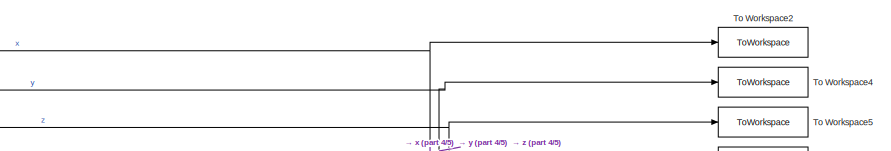
[diagram: root canvas - part 1/5, top right region]
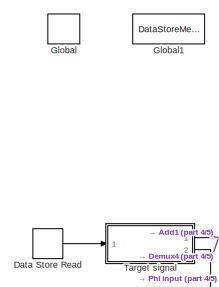
[diagram: root canvas - part 2/5, top left region]
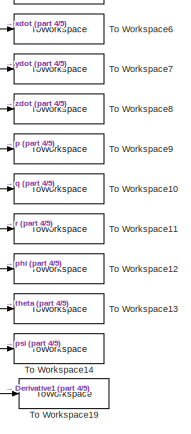
[diagram: root canvas - part 3/5, top right region]
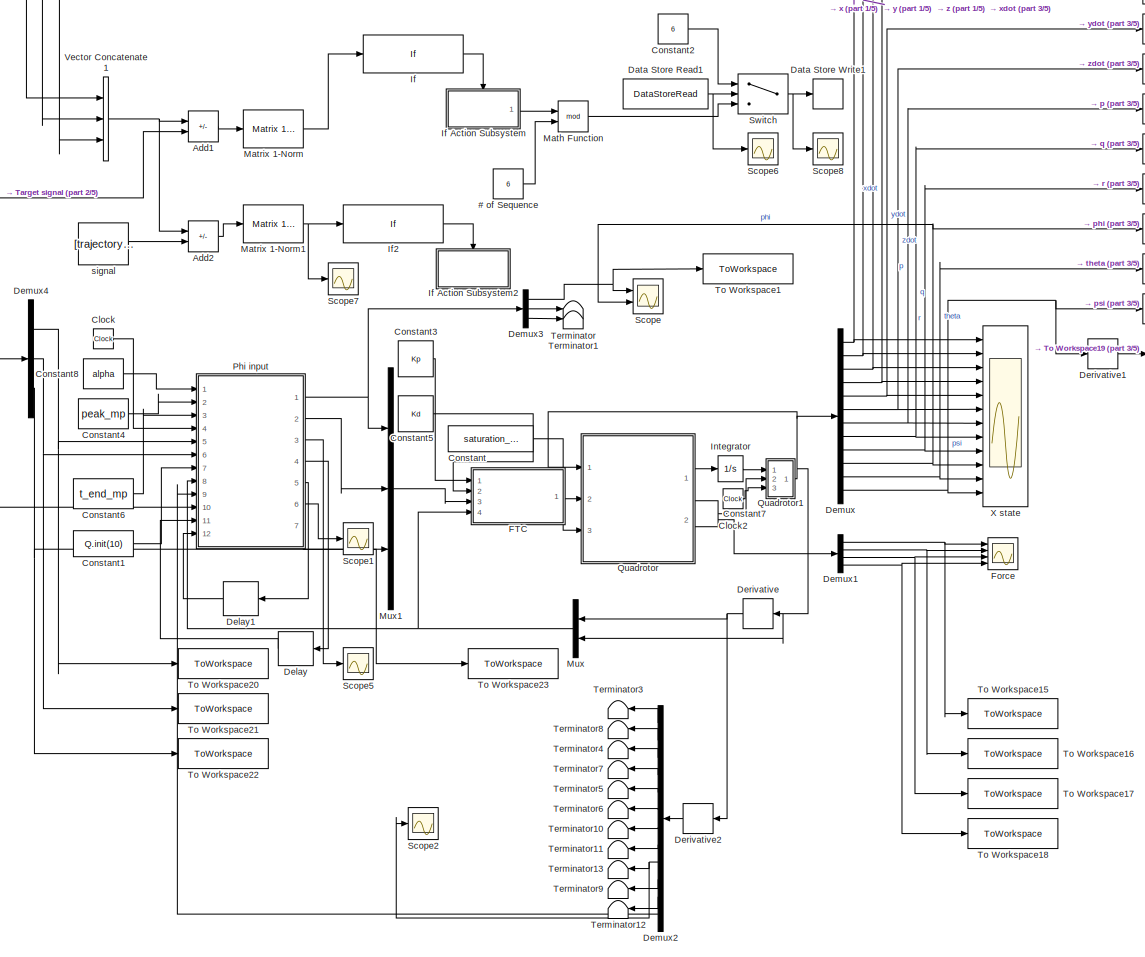
[diagram: root canvas - part 4/5, most of the canvas]
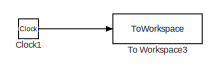
[diagram: root canvas - part 5/5, bottom center region]
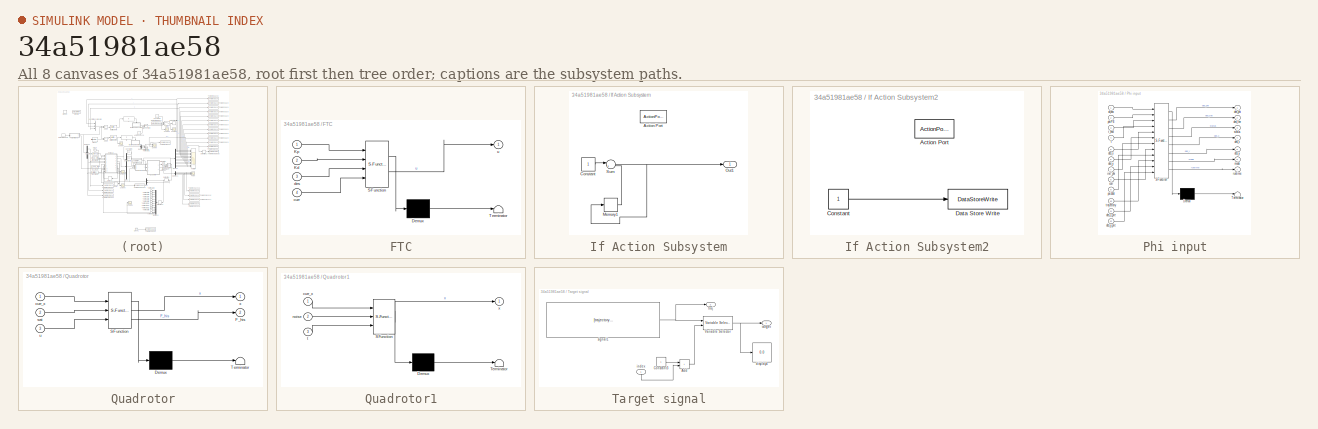
[diagram: thumbnail index - all 8 canvases of the model, root first then tree order]
MODEL slx_34a51981ae58
KIND model
CONFIG AbsTol = auto
CONFIG EnableMultiTasking = off
CONFIG FixedStep = 0.005
CONFIG MaxStep = auto
CONFIG MinStep = auto
CONFIG RelTol = 1e-3
CONFIG SampleTimeConstraint = Unconstrained
CONFIG SolverName = ode4
CONFIG StartTime = 0.0
CONFIG StopTime = tsim*1.64
BLOCK [Constant] # of Sequence 
  Value = 6
BLOCK [Sum] Add1
  IconShape = rectangular
  Inputs = -+
  Ports = [2, 1]
BLOCK [Sum] Add2
  IconShape = rectangular
  Inputs = -+
  Ports = [2, 1]
BLOCK [Clock] Clock
BLOCK [Clock] Clock1
BLOCK [Clock] Clock2
BLOCK [Constant] Constant
  Value = saturation_on
BLOCK [Constant] Constant1
  Value = Q.init(10)
BLOCK [Constant] Constant2
  Value = 6
BLOCK [Constant] Constant3
  Value = Kp
BLOCK [Constant] Constant4
  Value = peak_mp
BLOCK [Constant] Constant5
  Value = Kd
BLOCK [Constant] Constant6
  Value = t_end_mp
BLOCK [Constant] Constant7
  Value = noise
BLOCK [Constant] Constant8
  Value = alpha
BLOCK [DataStoreRead] Data Store Read
  DataStoreName = Index
  IndexOptions = Index vector (dialog)
  Indices = 1
  OutputSizes = 1
  Ports = [0, 1]
BLOCK [DataStoreRead] Data Store Read1
  DataStoreName = FinalPoint
  IndexOptions = Index vector (dialog)
  Indices = 1
  OutputSizes = 1
  Ports = [0, 1]
BLOCK [DataStoreWrite] Data Store Write1
  DataStoreName = Index
  IndexOptions = Index vector (dialog)
  Indices = 1
  OutputSizes = 1
  Ports = [1]
BLOCK [Delay] Delay
  DelayLength = 1
  InputPortMap = u0
  Ports = [1, 1]
BLOCK [Delay] Delay1
  DelayLength = 1
  InputPortMap = u0
  Ports = [1, 1]
BLOCK [Demux] Demux
  NameLocation = left
  Outputs = 12
  Ports = [1, 12]
BLOCK [Demux] Demux1
  Ports = [1, 4]
BLOCK [Demux] Demux2
  Outputs = 12
  Ports = [1, 12]
BLOCK [Demux] Demux3
  Outputs = 3
  Ports = [1, 3]
BLOCK [Demux] Demux4
  Outputs = 3
  Ports = [1, 3]
BLOCK [Derivative] Derivative
BLOCK [Derivative] Derivative1
BLOCK [Derivative] Derivative2
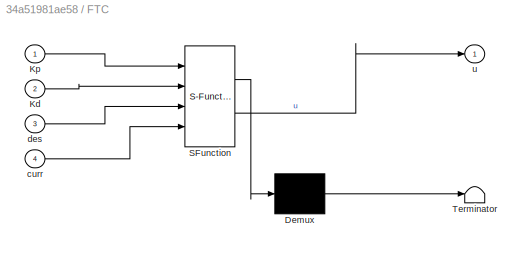
BLOCK [SubSystem] FTC
  ErrorFcn = Stateflow.Translate.translate
  PermitHierarchicalResolution = ExplicitOnly
  Ports = [4, 1]
  RequestExecContextInheritance = off
  SFBlockType = MATLAB Function
  TreatAsAtomicUnit = on
BLOCK [Demux] FTC/ Demux 
  Outputs = 1
  Ports = [1, 1]
BLOCK [S-Function] FTC/ SFunction 
  EnableBusSupport = on
  FunctionName = sf_sfun
  PortCounts = [4 2]
  Ports = [4, 2]
  SFcnIsStateOwnerBlock = off
  SFunctionDeploymentMode = off
  Tag = Stateflow S-Function 5
BLOCK [Terminator] FTC/ Terminator 
BLOCK [Inport] FTC/Kd
  Port = 2
BLOCK [Inport] FTC/Kp
BLOCK [Inport] FTC/curr
  Port = 4
BLOCK [Inport] FTC/des
  Port = 3
BLOCK [Outport] FTC/u
BLOCK [Scope] Force
  Floating = off
  NumInputPorts = 4
  Ports = [4]
  ScopeSpecificationString = Simulink.scopes.TimeScopeBlockCfg('CurrentConfiguration', extmgr.ConfigurationSet(extmgr.Configuration('Core','General UI',true),extmgr.Configuration('Core','Source UI',true),extmgr.Configuration('Sources','WiredSimulink',true,'DataLoggingVariableName','Force','DataLogging',true,'DataLoggingSaveFormat','Structure'),extmgr.Configuration('Visuals','Time Domain',true,'SerializedDisplays',{struct('Min...<+3473ch>
BLOCK [DataStoreMemory] Global
  DataStoreName = Index
  OutDataTypeStr = double
  ReadBeforeWriteMsg = warning
  ShowAdditionalParam = off
  SignalType = real
  WriteAfterReadMsg = warning
  WriteAfterWriteMsg = warning
BLOCK [DataStoreMemory] Global1
  DataStoreName = FinalPoint
  OutDataTypeStr = double
  ReadBeforeWriteMsg = warning
  ShowAdditionalParam = off
  SignalType = real
  WriteAfterReadMsg = warning
  WriteAfterWriteMsg = warning
BLOCK [If] If
  IfExpression = u1 <1.5
  Ports = [1, 1]
  ShowElse = off
BLOCK [SubSystem] If Action Subsystem
  Ports = [0, 1, 0, 0, 0, 0, 0, 1]
  RequestExecContextInheritance = off
  TreatAsAtomicUnit = on
BLOCK [ActionPort] If Action Subsystem/Action Port
  ActionPortLabel = if(u1 <1)
BLOCK [Constant] If Action Subsystem/Constant
BLOCK [Memory] If Action Subsystem/Memory1
BLOCK [Outport] If Action Subsystem/Out1
  VectorParamsAs1DForOutWhenUnconnected = off
BLOCK [Sum] If Action Subsystem/Sum
  Inputs = |++
  Ports = [2, 1]
BLOCK [SubSystem] If Action Subsystem2
  Ports = [0, 0, 0, 0, 0, 0, 0, 1]
  RequestExecContextInheritance = off
  TreatAsAtomicUnit = on
BLOCK [ActionPort] If Action Subsystem2/Action Port
  ActionPortLabel = if(u1 < 1)
BLOCK [Constant] If Action Subsystem2/Constant
BLOCK [DataStoreWrite] If Action Subsystem2/Data Store Write
  DataStoreName = FinalPoint
  IndexOptions = Index vector (dialog)
  Indices = 1
  OutputSizes = 1
  Ports = [1]
BLOCK [If] If2
  IfExpression = u1 < 1.5
  Ports = [1, 1]
  ShowElse = off
BLOCK [Integrator] Integrator
  InitialCondition = Q.init
  Ports = [1, 1]
BLOCK [Math] Math Function
  Operator = mod
  Ports = [2, 1]
  SignedPower = on
BLOCK [Reference] Matrix 1-Norm  REF=dspmtrx3/Matrix 
1-Norm
  Ports = [1, 1]
  SourceBlock = dspmtrx3/Matrix \n1-Norm
  SourceProductBaseCode = DS
  SourceType = Matrix 1-Norm
BLOCK [Reference] Matrix 1-Norm1  REF=dspmtrx3/Matrix 
1-Norm
  Ports = [1, 1]
  SourceBlock = dspmtrx3/Matrix \n1-Norm
  SourceProductBaseCode = DS
  SourceType = Matrix 1-Norm
BLOCK [Mux] Mux
  DisplayOption = bar
  Inputs = 2
  Ports = [2, 1]
BLOCK [Mux] Mux1
  DisplayOption = bar
  Inputs = 3
  Ports = [3, 1]
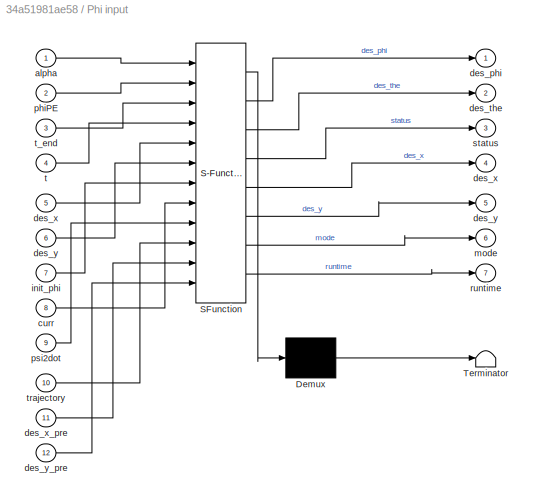
BLOCK [SubSystem] Phi input
  ErrorFcn = Stateflow.Translate.translate
  PermitHierarchicalResolution = ExplicitOnly
  Ports = [12, 7]
  RequestExecContextInheritance = off
  SFBlockType = MATLAB Function
  TreatAsAtomicUnit = on
BLOCK [Demux] Phi input/ Demux 
  Outputs = 1
  Ports = [1, 1]
BLOCK [S-Function] Phi input/ SFunction 
  EnableBusSupport = on
  FunctionName = sf_sfun
  PortCounts = [12 8]
  Ports = [12, 8]
  SFcnIsStateOwnerBlock = off
  SFunctionDeploymentMode = off
  Tag = Stateflow S-Function 4
BLOCK [Terminator] Phi input/ Terminator 
BLOCK [Inport] Phi input/alpha
BLOCK [Inport] Phi input/curr
  Port = 8
BLOCK [Outport] Phi input/des_phi
BLOCK [Outport] Phi input/des_the
  Port = 2
BLOCK [Outport] Phi input/des_x
  Port = 4
BLOCK [Inport] Phi input/des_x 
  Port = 5
BLOCK [Inport] Phi input/des_x_pre
  Port = 11
BLOCK [Outport] Phi input/des_y
  Port = 5
BLOCK [Inport] Phi input/des_y 
  Port = 6
BLOCK [Inport] Phi input/des_y_pre
  Port = 12
BLOCK [Inport] Phi input/init_phi
  Port = 7
BLOCK [Outport] Phi input/mode
  Port = 6
BLOCK [Inport] Phi input/phiPE
  Port = 2
BLOCK [Inport] Phi input/psi2dot
  Port = 9
BLOCK [Outport] Phi input/runtime
  Port = 7
BLOCK [Outport] Phi input/status
  Port = 3
BLOCK [Inport] Phi input/t
  Port = 4
BLOCK [Inport] Phi input/t_end
  Port = 3
BLOCK [Inport] Phi input/trajectory
  Port = 10
BLOCK [SubSystem] Quadrotor
  ErrorFcn = Stateflow.Translate.translate
  PermitHierarchicalResolution = ExplicitOnly
  Ports = [3, 2]
  RequestExecContextInheritance = off
  SFBlockType = MATLAB Function
  TreatAsAtomicUnit = on
BLOCK [Demux] Quadrotor/ Demux 
  Outputs = 1
  Ports = [1, 1]
BLOCK [S-Function] Quadrotor/ SFunction 
  EnableBusSupport = on
  FunctionName = sf_sfun
  PortCounts = [3 3]
  Ports = [3, 3]
  SFcnIsStateOwnerBlock = off
  SFunctionDeploymentMode = off
  Tag = Stateflow S-Function 2
BLOCK [Terminator] Quadrotor/ Terminator 
BLOCK [Outport] Quadrotor/F_his
  Port = 2
BLOCK [Inport] Quadrotor/curr_x
BLOCK [Inport] Quadrotor/sat
  Port = 2
BLOCK [Inport] Quadrotor/u
  Port = 3
BLOCK [Outport] Quadrotor/x
BLOCK [SubSystem] Quadrotor1
  ErrorFcn = Stateflow.Translate.translate
  PermitHierarchicalResolution = ExplicitOnly
  Ports = [3, 1]
  RequestExecContextInheritance = off
  SFBlockType = MATLAB Function
  TreatAsAtomicUnit = on
BLOCK [Demux] Quadrotor1/ Demux 
  Outputs = 1
  Ports = [1, 1]
BLOCK [S-Function] Quadrotor1/ SFunction 
  EnableBusSupport = on
  FunctionName = sf_sfun
  PortCounts = [3 2]
  Ports = [3, 2]
  SFcnIsStateOwnerBlock = off
  SFunctionDeploymentMode = off
  Tag = Stateflow S-Function 1
BLOCK [Terminator] Quadrotor1/ Terminator 
BLOCK [Inport] Quadrotor1/curr_x
BLOCK [Inport] Quadrotor1/noise
  Port = 2
BLOCK [Inport] Quadrotor1/t
  Port = 3
BLOCK [Outport] Quadrotor1/x
BLOCK [Scope] Scope
  Floating = off
  NumInputPorts = 2
  Ports = [2]
  ScopeSpecificationString = Simulink.scopes.TimeScopeBlockCfg('CurrentConfiguration', extmgr.ConfigurationSet(extmgr.Configuration('Core','General UI',true),extmgr.Configuration('Core','Source UI',true),extmgr.Configuration('Sources','WiredSimulink',true,'DataLoggingVariableName','ScopeData1'),extmgr.Configuration('Visuals','Time Domain',true,'SerializedDisplays',{struct('MinYLimReal','-0.0874','MaxYLimReal','0.78663','YLabe...<+1441ch>
BLOCK [Scope] Scope1
  Floating = off
  NumInputPorts = 1
  Ports = [1]
  ScopeSpecificationString = Simulink.scopes.TimeScopeBlockCfg('CurrentConfiguration', extmgr.ConfigurationSet(extmgr.Configuration('Core','General UI',true),extmgr.Configuration('Core','Source UI',true),extmgr.Configuration('Sources','WiredSimulink',true,'DataLoggingVariableName','ScopeData1'),extmgr.Configuration('Visuals','Time Domain',true,'SerializedDisplays',{struct('MinYLimReal','0.5','MaxYLimReal','5.5','YLabelReal','...<+1339ch>
BLOCK [Scope] Scope2
  Floating = off
  NumInputPorts = 1
  Ports = [1]
  ScopeSpecificationString = Simulink.scopes.TimeScopeBlockCfg('CurrentConfiguration', extmgr.ConfigurationSet(extmgr.Configuration('Core','General UI',true),extmgr.Configuration('Core','Source UI',true),extmgr.Configuration('Sources','WiredSimulink',true,'DataLoggingVariableName','ScopeData1'),extmgr.Configuration('Visuals','Time Domain',true,'SerializedDisplays',{struct('MinYLimReal','-128.00677','MaxYLimReal','150.62985','...<+1400ch>
BLOCK [Scope] Scope5
  Floating = off
  NumInputPorts = 1
  Ports = [1]
  ScopeSpecificationString = Simulink.scopes.TimeScopeBlockCfg('CurrentConfiguration', extmgr.ConfigurationSet(extmgr.Configuration('Core','General UI',true),extmgr.Configuration('Core','Source UI',true),extmgr.Configuration('Sources','WiredSimulink',true,'DataLoggingVariableName','ScopeData1'),extmgr.Configuration('Visuals','Time Domain',true,'SerializedDisplays',{struct('MinYLimReal','0.11177','MaxYLimReal','1.57973','YLabe...<+1421ch>
BLOCK [Scope] Scope6
  Floating = off
  NumInputPorts = 1
  Ports = [1]
  ScopeSpecificationString = Simulink.scopes.TimeScopeBlockCfg('CurrentConfiguration', extmgr.ConfigurationSet(extmgr.Configuration('Core','General UI',true),extmgr.Configuration('Core','Source UI',true),extmgr.Configuration('Sources','WiredSimulink',true,'DataLoggingVariableName','ScopeData1'),extmgr.Configuration('Visuals','Time Domain',true,'SerializedDisplays',{struct('MinYLimReal','-0.125','MaxYLimReal','1.125','YLabelRe...<+1363ch>
BLOCK [Scope] Scope7
  Floating = off
  NumInputPorts = 1
  Ports = [1]
  ScopeSpecificationString = Simulink.scopes.TimeScopeBlockCfg('CurrentConfiguration', extmgr.ConfigurationSet(extmgr.Configuration('Core','General UI',true),extmgr.Configuration('Core','Source UI',true),extmgr.Configuration('Sources','WiredSimulink',true,'DataLoggingVariableName','ScopeData2'),extmgr.Configuration('Visuals','Time Domain',true,'SerializedDisplays',{struct('MinYLimReal','-3.89984','MaxYLimReal','49.63733','YLa...<+1378ch>
BLOCK [Scope] Scope8
  Floating = off
  NumInputPorts = 1
  Ports = [1]
  ScopeSpecificationString = Simulink.scopes.TimeScopeBlockCfg('CurrentConfiguration', extmgr.ConfigurationSet(extmgr.Configuration('Core','General UI',true),extmgr.Configuration('Core','Source UI',true),extmgr.Configuration('Sources','WiredSimulink',true,'DataLoggingVariableName','ScopeData3'),extmgr.Configuration('Visuals','Time Domain',true,'SerializedDisplays',{struct('MinYLimReal','-1.00000','MaxYLimReal','1.00000','YLab...<+1395ch>
BLOCK [Switch] Switch
  Criteria = u2 ~= 0
  InputSameDT = off
  SaturateOnIntegerOverflow = off
BLOCK [SubSystem] Target signal
  Ports = [1, 2]
  RequestExecContextInheritance = off
BLOCK [Sum] Target signal/Add
  IconShape = rectangular
  Ports = [2, 1]
BLOCK [Constant] Target signal/Constant3
BLOCK [Reference] Target signal/Variable Selector  REF=dspindex/Variable
Selector
  Ports = [2, 1]
  SourceBlock = dspindex/Variable\nSelector
  SourceProductBaseCode = DS
  SourceType = Variable Selector
BLOCK [Display] Target signal/display4
  Decimation = 1
  Ports = [1]
BLOCK [Inport] Target signal/index
  NameLocation = right
BLOCK [Constant] Target signal/signal1
  Value = [trajectory(6,1) trajectory(6,2) des_z;trajectory(5,1) trajectory(5,2) des_z; trajectory(4,1) trajectory(4,2) des_z; trajectory(3,1) trajectory(3,2) des_z; trajectory(2,1) trajectory(2,2) des_z; trajectory(1,1) trajectory(1,2) des_z]
  VectorParams1D = off
BLOCK [Outport] Target signal/target
  VectorParamsAs1DForOutWhenUnconnected = off
BLOCK [Outport] Target signal/traj
  Port = 2
  VectorParamsAs1DForOutWhenUnconnected = off
BLOCK [Terminator] Terminator
BLOCK [Terminator] Terminator1
BLOCK [Terminator] Terminator10
BLOCK [Terminator] Terminator11
BLOCK [Terminator] Terminator12
BLOCK [Terminator] Terminator13
BLOCK [Terminator] Terminator3
BLOCK [Terminator] Terminator4
BLOCK [Terminator] Terminator5
BLOCK [Terminator] Terminator6
BLOCK [Terminator] Terminator7
BLOCK [Terminator] Terminator8
BLOCK [Terminator] Terminator9
BLOCK [ToWorkspace] To Workspace1
  FixptAsFi = on
  MaxDataPoints = inf
  Ports = [1]
  SampleTime = -1
  Save2DSignal = 2-D array (concatenate along first dimension)
  VariableName = phi_d
BLOCK [ToWorkspace] To Workspace10
  FixptAsFi = on
  MaxDataPoints = inf
  Ports = [1]
  SampleTime = -1
  Save2DSignal = 2-D array (concatenate along first dimension)
  VariableName = q
BLOCK [ToWorkspace] To Workspace11
  FixptAsFi = on
  MaxDataPoints = inf
  Ports = [1]
  SampleTime = -1
  Save2DSignal = 2-D array (concatenate along first dimension)
  VariableName = r
BLOCK [ToWorkspace] To Workspace12
  FixptAsFi = on
  MaxDataPoints = inf
  Ports = [1]
  SampleTime = -1
  Save2DSignal = 2-D array (concatenate along first dimension)
  VariableName = phi
BLOCK [ToWorkspace] To Workspace13
  FixptAsFi = on
  MaxDataPoints = inf
  Ports = [1]
  SampleTime = -1
  Save2DSignal = 2-D array (concatenate along first dimension)
  VariableName = theta
BLOCK [ToWorkspace] To Workspace14
  FixptAsFi = on
  MaxDataPoints = inf
  Ports = [1]
  SampleTime = -1
  Save2DSignal = 2-D array (concatenate along first dimension)
  VariableName = psi
BLOCK [ToWorkspace] To Workspace15
  FixptAsFi = on
  MaxDataPoints = inf
  Ports = [1]
  SampleTime = -1
  Save2DSignal = 2-D array (concatenate along first dimension)
  VariableName = F1
BLOCK [ToWorkspace] To Workspace16
  FixptAsFi = on
  MaxDataPoints = inf
  Ports = [1]
  SampleTime = -1
  Save2DSignal = 2-D array (concatenate along first dimension)
  VariableName = F2
BLOCK [ToWorkspace] To Workspace17
  FixptAsFi = on
  MaxDataPoints = inf
  Ports = [1]
  SampleTime = -1
  Save2DSignal = 2-D array (concatenate along first dimension)
  VariableName = F3
BLOCK [ToWorkspace] To Workspace18
  FixptAsFi = on
  MaxDataPoints = inf
  Ports = [1]
  SampleTime = -1
  Save2DSignal = 2-D array (concatenate along first dimension)
  VariableName = F4
BLOCK [ToWorkspace] To Workspace19
  FixptAsFi = on
  MaxDataPoints = inf
  Ports = [1]
  SampleTime = -1
  Save2DSignal = 2-D array (concatenate along first dimension)
  VariableName = psidot
BLOCK [ToWorkspace] To Workspace2
  FixptAsFi = on
  MaxDataPoints = inf
  Ports = [1]
  SampleTime = -1
  Save2DSignal = 2-D array (concatenate along first dimension)
  VariableName = x
BLOCK [ToWorkspace] To Workspace20
  FixptAsFi = on
  MaxDataPoints = inf
  Ports = [1]
  SampleTime = -1
  Save2DSignal = 2-D array (concatenate along first dimension)
  VariableName = xd
BLOCK [ToWorkspace] To Workspace21
  FixptAsFi = on
  MaxDataPoints = inf
  Ports = [1]
  SampleTime = -1
  Save2DSignal = 2-D array (concatenate along first dimension)
  VariableName = yd
BLOCK [ToWorkspace] To Workspace22
  FixptAsFi = on
  MaxDataPoints = inf
  Ports = [1]
  SampleTime = -1
  Save2DSignal = 2-D array (concatenate along first dimension)
  VariableName = zd
BLOCK [ToWorkspace] To Workspace23
  FixptAsFi = on
  MaxDataPoints = inf
  Ports = [1]
  SampleTime = -1
  Save2DSignal = 2-D array (concatenate along first dimension)
  VariableName = runtime
BLOCK [ToWorkspace] To Workspace3
  FixptAsFi = on
  MaxDataPoints = inf
  Ports = [1]
  SampleTime = -1
  Save2DSignal = 2-D array (concatenate along first dimension)
  VariableName = time_sim
BLOCK [ToWorkspace] To Workspace4
  FixptAsFi = on
  MaxDataPoints = inf
  Ports = [1]
  SampleTime = -1
  Save2DSignal = 2-D array (concatenate along first dimension)
  VariableName = y
BLOCK [ToWorkspace] To Workspace5
  FixptAsFi = on
  MaxDataPoints = inf
  Ports = [1]
  SampleTime = -1
  Save2DSignal = 2-D array (concatenate along first dimension)
  VariableName = z
BLOCK [ToWorkspace] To Workspace6
  FixptAsFi = on
  MaxDataPoints = inf
  Ports = [1]
  SampleTime = -1
  Save2DSignal = 2-D array (concatenate along first dimension)
  VariableName = xdot
BLOCK [ToWorkspace] To Workspace7
  FixptAsFi = on
  MaxDataPoints = inf
  Ports = [1]
  SampleTime = -1
  Save2DSignal = 2-D array (concatenate along first dimension)
  VariableName = ydot
BLOCK [ToWorkspace] To Workspace8
  FixptAsFi = on
  MaxDataPoints = inf
  Ports = [1]
  SampleTime = -1
  Save2DSignal = 2-D array (concatenate along first dimension)
  VariableName = zdot
BLOCK [ToWorkspace] To Workspace9
  FixptAsFi = on
  MaxDataPoints = inf
  Ports = [1]
  SampleTime = -1
  Save2DSignal = 2-D array (concatenate along first dimension)
  VariableName = p
BLOCK [Concatenate] Vector Concatenate1
  NumInputs = 3
  Ports = [3, 1]
BLOCK [Scope] X state
  Floating = off
  NumInputPorts = 12
  Ports = [12]
  ScopeSpecificationString = Simulink.scopes.TimeScopeBlockCfg('CurrentConfiguration', extmgr.ConfigurationSet(extmgr.Configuration('Core','General UI',true),extmgr.Configuration('Core','Source UI',true),extmgr.Configuration('Sources','WiredSimulink',true,'DataLogging',true,'DataLoggingVariableName','X_out','DataLoggingSaveFormat','Structure'),extmgr.Configuration('Visuals','Time Domain',true,'SerializedDisplays',{struct('Min...<+9065ch>
BLOCK [Constant] signal
  Value = [trajectory(1,1) trajectory(1,2) des_z]
  VectorParams1D = off
LINE # of Sequence :1 -> Math Function:2
LINE Add1:1 -> Matrix 1-Norm:1
LINE Add2:1 -> Matrix 1-Norm1:1
LINE Clock1:1 -> To Workspace3:1
LINE Clock2:1 -> Quadrotor1:3
LINE Clock:1 -> Phi input:4
LINE Constant1:1 -> Phi input:7
LINE Constant2:1 -> Switch:1
LINE Constant3:1 -> FTC:1
LINE Constant4:1 -> Phi input:2
LINE Constant5:1 -> FTC:2
LINE Constant6:1 -> Phi input:3
LINE Constant7:1 -> Quadrotor1:2
LINE Constant8:1 -> Phi input:1
LINE Constant:1 -> Quadrotor:2
NET Data Store Read1:1 -> Scope6:1, Switch:2
LINE Data Store Read:1 -> Target signal:1
LINE Delay1:1 -> Phi input:12
LINE Delay:1 -> Phi input:11
NET Demux1:1 -> Force:1, To Workspace15:1
NET Demux1:2 -> Force:2, To Workspace16:1
NET Demux1:3 -> Force:3, To Workspace17:1
NET Demux1:4 -> Force:4, To Workspace18:1
LINE Demux2:1 -> Terminator3:1
LINE Demux2:10 -> Terminator9:1
LINE Demux2:11 -> Terminator12:1
LINE Demux2:12 -> Phi input:9
LINE Demux2:2 -> Terminator8:1
LINE Demux2:3 -> Terminator4:1
LINE Demux2:4 -> Terminator7:1
LINE Demux2:5 -> Terminator5:1
LINE Demux2:6 -> Terminator6:1
LINE Demux2:7 -> Terminator10:1
LINE Demux2:8 -> Terminator11:1
NET Demux2:9 -> Scope2:1, Terminator13:1
NET Demux3:1 -> Scope:1, To Workspace1:1
LINE Demux3:2 -> Terminator:1
LINE Demux3:3 -> Terminator1:1
NET Demux4:1 -> Phi input:5, To Workspace20:1
NET Demux4:2 -> Phi input:6, To Workspace21:1
NET Demux4:3 -> Mux1:3, To Workspace22:1
NET Demux:1 -> To Workspace2:1, Vector Concatenate1:1, X state:1
NET Demux:10 -> Scope:2, To Workspace12:1, X state:10
NET Demux:11 -> To Workspace13:1, X state:11
NET Demux:12 -> Derivative1:1, To Workspace14:1, X state:12
NET Demux:2 -> To Workspace4:1, Vector Concatenate1:2, X state:2
NET Demux:3 -> To Workspace5:1, Vector Concatenate1:3, X state:3
NET Demux:4 -> To Workspace6:1, X state:4
NET Demux:5 -> To Workspace7:1, X state:5
NET Demux:6 -> To Workspace8:1, X state:6
NET Demux:7 -> To Workspace9:1, X state:7
NET Demux:8 -> To Workspace10:1, X state:8
NET Demux:9 -> To Workspace11:1, X state:9
LINE Derivative1:1 -> To Workspace19:1
LINE Derivative2:1 -> Demux2:1
NET Derivative:1 -> Derivative2:1, Mux:1
LINE FTC:1 -> Quadrotor:3
LINE If Action Subsystem/Constant:1 -> If Action Subsystem/Sum:1
LINE If Action Subsystem/Memory1:1 -> If Action Subsystem/Sum:2
NET If Action Subsystem/Sum:1 -> If Action Subsystem/Memory1:1, If Action Subsystem/Out1:1
LINE If Action Subsystem2/Constant:1 -> If Action Subsystem2/Data Store Write:1
LINE If Action Subsystem:1 -> Math Function:1
LINE If2:1 -> If Action Subsystem2:ifaction
LINE If:1 -> If Action Subsystem:ifaction
LINE Integrator:1 -> Quadrotor1:1
LINE Math Function:1 -> Switch:3
NET Matrix 1-Norm1:1 -> If2:1, Scope7:1
LINE Matrix 1-Norm:1 -> If:1
LINE Mux1:1 -> FTC:3
NET Mux:1 -> FTC:4, Phi input:8
NET Phi input:1 -> Demux3:1, Mux1:1
LINE Phi input:2 -> Mux1:2
LINE Phi input:3 -> Scope5:1
LINE Phi input:4 -> Delay:1
LINE Phi input:5 -> Delay1:1
LINE Phi input:6 -> Scope1:1
LINE Phi input:7 -> To Workspace23:1
NET Quadrotor1:1 -> Demux:1, Derivative:1, Mux:2, Quadrotor:1
LINE Quadrotor:1 -> Integrator:1
LINE Quadrotor:2 -> Demux1:1
NET Switch:1 -> Data Store Write1:1, Scope8:1
LINE Target signal/Add:1 -> Target signal/Variable Selector:2
LINE Target signal/Constant3:1 -> Target signal/Add:1
NET Target signal/Variable Selector:1 -> Target signal/display4:1, Target signal/target:1
LINE Target signal/index:1 -> Target signal/Add:2
NET Target signal/signal1:1 -> Target signal/Variable Selector:1, Target signal/traj:1
NET Target signal:1 -> Add1:2, Demux4:1
LINE Target signal:2 -> Phi input:10
NET Vector Concatenate1:1 -> Add1:1, Add2:1
LINE signal:1 -> Add2:2
note: NET lines group one-source signal fan-out (src -> all destinations, sorted); 1:1 wires keep LINE
CHART Quadrotor1 states=1 transitions=1
  STATE_LABEL 'eML_blk_kernel()'
  STATE_LABEL 'SCRIPT:\nfunction x  = system(curr_x, noise, t)\n\nind = fix(t/0.01)+1;\nmu = 0;\nsigma = 0.01;\n\n\nx = curr_x;\nx(1) = curr_x(1)+noise(ind,1);\nx(2) = curr_x(2)+noise(ind,2);\nx(3) = curr_x(3)+noise(ind,3);\n\n'
CHART Quadrotor states=1 transitions=1
  STATE_LABEL 'eML_blk_kernel()'
  STATE_LABEL "SCRIPT:\nfunction [x,F_his] = system(curr_x,sat,u)\n% x = {xyz xyzvel pqr phi theta psi}\nx = zeros(12,1);\n% Properties\nm = 1.282; g = 9.81;\nIx = 4.856*10^-3; Iy = Ix; Iz = 8.801*10^-3;\nb = 0.0066;\nkr = 0.02;\nkt = 0.5;\nl = 0.1;\n\nu_temp = zeros(3,1);\nu_temp = u;\nu = u_temp;\n\nT = u(1); tp = u(2); tq = u(3);% tr = u(4);\ntr = b*(T-2*tp/l);\nA = [1 1 1; 0 l 0;-l 0 l];\n\nF=inv(A)*[T tp tq]';\n\nf1 = F(1); f2 =...<+2544ch>"
CHART Phi input states=1 transitions=1
  STATE_LABEL 'eML_blk_kernel()'
  STATE_LABEL 'SCRIPT:\nfunction [des_phi,des_the,status,des_x,des_y,mode,runtime]  = fcn(alpha,phiPE,t_end,t,des_x,des_y,init_phi,curr,psi2dot,trajectory,des_x_pre,des_y_pre)\n\ntic;\nm = 1.282; g = 9.81;\nIx = 4.856*10^-3; Iy = Ix; Iz = 8.801*10^-3;\nb = 0.0066;\nkr = 0.02; %drag coefficient\nkt = 0.5;\nl = 0.1;\n\nphi0 = init_phi;\nT = t_end;\n\nrPE = (-kr/b+sqrt((kr/b)^2+8*m*g/(l*cos(phiPE))*(Iz-Iy)*tan(phiPE)))/(4*(Iz-Iy...<+3608ch>'
CHART FTC states=1 transitions=1
  STATE_LABEL 'eML_blk_kernel()'
  STATE_LABEL 'SCRIPT:\nfunction u = pd(Kp,Kd,des,curr)\n\nm = 1.282; g = 9.81;\nIx = 4.856*10^-3; Iy = Ix; Iz = 8.801*10^-3;\nb = 0.0066;\nkr = 0.02;\nkt = 0.5;\nl = 0.1;\n\n% current state\nN = 0;\nxdot   = curr(N+1); ydot   = curr(N+2); zdot   = curr(N+3);\nx2dot  = curr(N+4); y2dot  = curr(N+5); z2dot  = curr(N+6);\npdot   = curr(N+7); qdot   = curr(N+8); rdot   = curr(N+9);\nphidot = curr(N+10);thedot = curr(N+11);psidot ...<+1118ch>'
CHART  states=0 transitions=0
CHART  states=0 transitions=0
CHART  states=0 transitions=0
CHART  states=0 transitions=0
